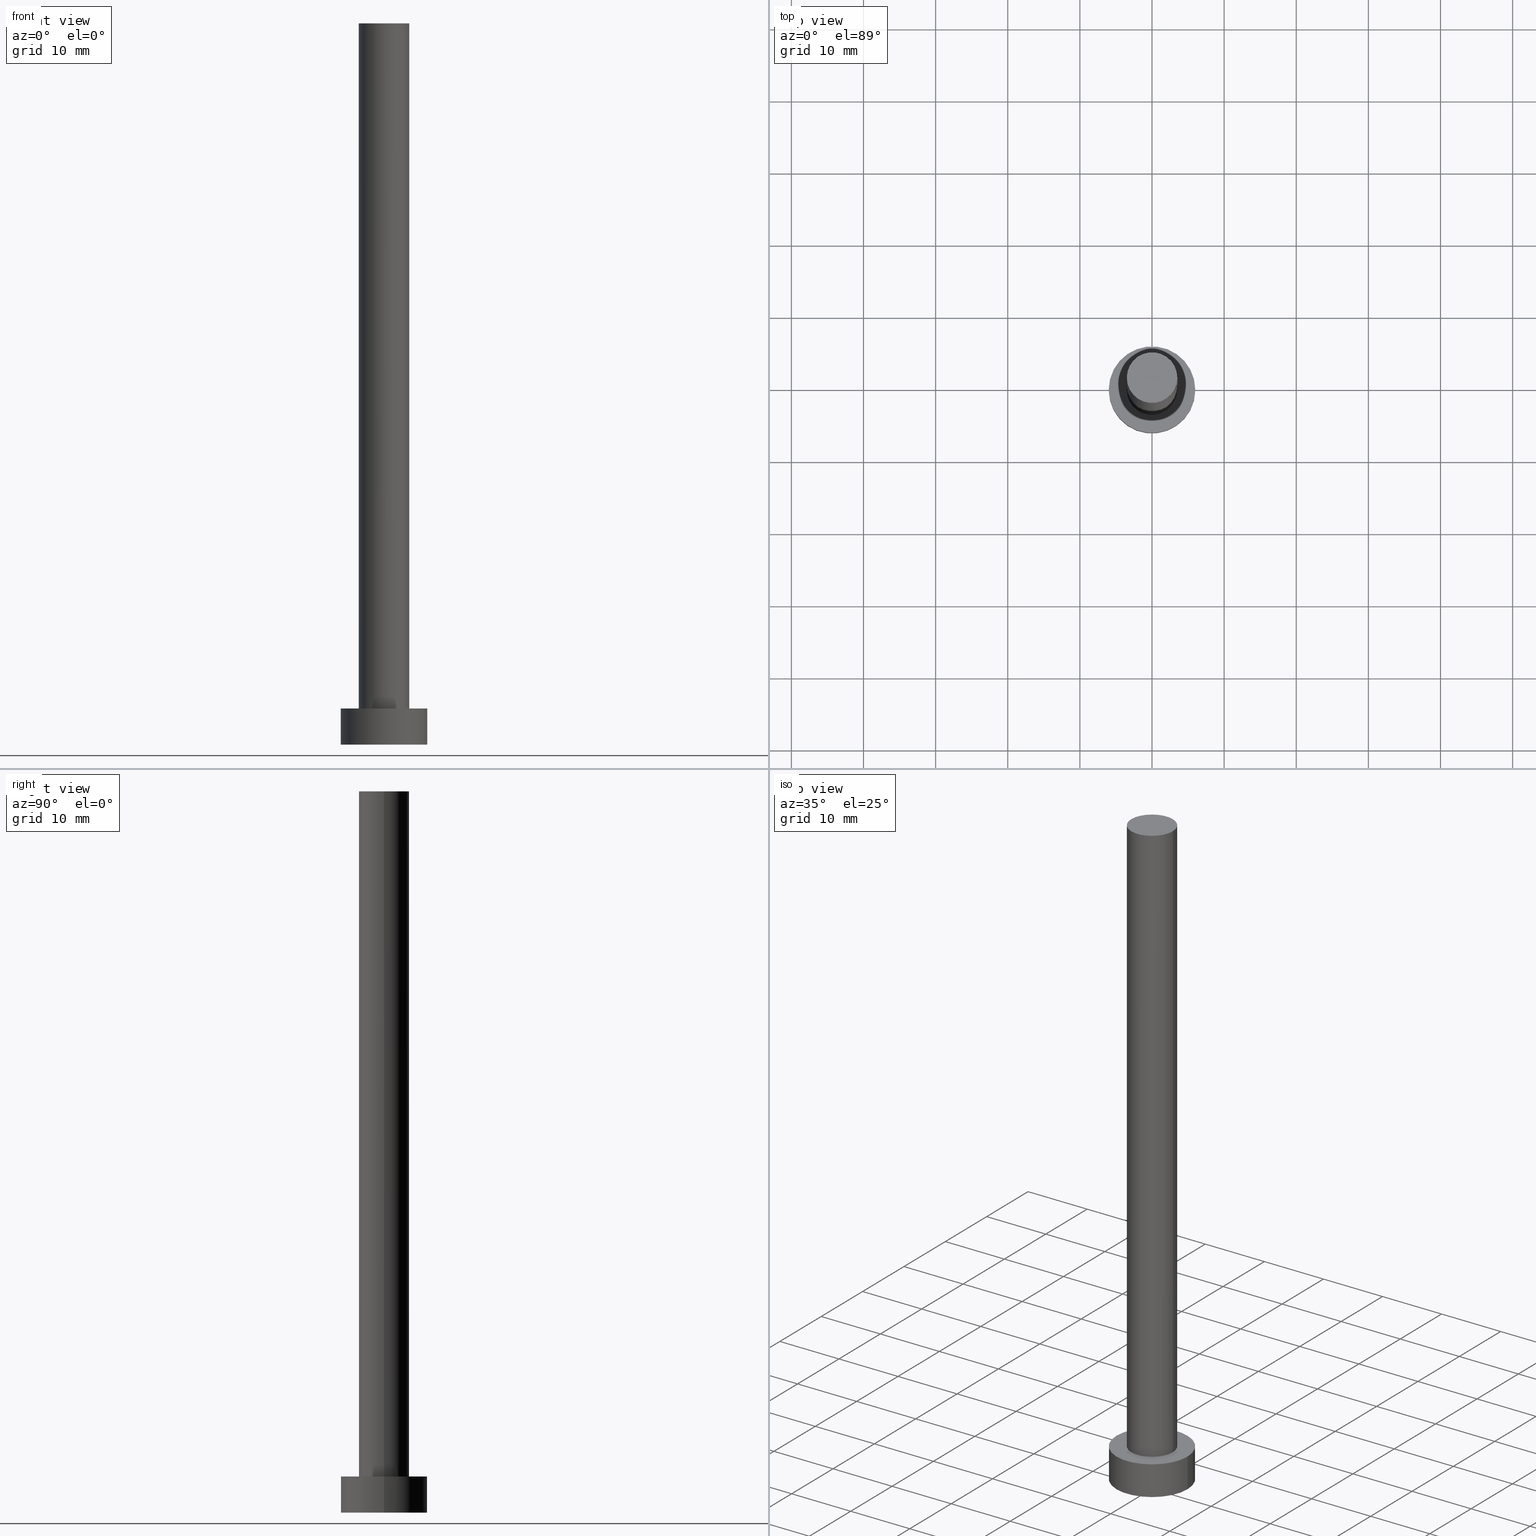
[diagram: canonical four-view strip — front | top / right | iso, engineering-drawing reading convention]
A machine part, canonical four-view strip (front | top / right | iso — engineering-drawing reading convention). The complete STEP part file that produces these views, byte-faithful:
ISO-10303-21;
HEADER;
FILE_DESCRIPTION (( 'STEP AP203' ),
    '1' );
FILE_NAME ('2190.STEP',
    '2023-02-13T13:36:54',
    ( '' ),
    ( '' ),
    'SwSTEP 2.0',
    'SolidWorks 2019',
    '' );
FILE_SCHEMA (( 'CONFIG_CONTROL_DESIGN' ));
ENDSEC;

DATA;
#1 = VERTEX_POINT ( 'NONE', #223 ) ;
#2 = DIRECTION ( 'NONE',  ( -0.000000000000000000, -0.000000000000000000, -1.000000000000000000 ) ) ;
#3 = UNCERTAINTY_MEASURE_WITH_UNIT (LENGTH_MEASURE( 1.000000000000000082E-05 ), #142, 'distance_accuracy_value', 'NONE');
#4 = ORIENTED_EDGE ( 'NONE', *, *, #13, .T. ) ;
#5 = PLANE ( 'NONE',  #212 ) ;
#6 = CIRCLE ( 'NONE', #183, 3.500000000000000000 ) ;
#7 = COORDINATED_UNIVERSAL_TIME_OFFSET ( 1, 0, .AHEAD. ) ;
#8 = ORIENTED_EDGE ( 'NONE', *, *, #162, .T. ) ;
#9 = PERSON ( 'NEUR�EN�', 'NEUR�EN�', 'NEUR�EN�', ('NEUR�EN�'), ('NEUR�EN�'), ('NEUR�EN�') ) ;
#10 = ORIENTED_EDGE ( 'NONE', *, *, #176, .T. ) ;
#11 = CARTESIAN_POINT ( 'NONE',  ( 0.000000000000000000, 0.000000000000000000, 100.0000000000000000 ) ) ;
#12 =( GEOMETRIC_REPRESENTATION_CONTEXT ( 3 ) GLOBAL_UNCERTAINTY_ASSIGNED_CONTEXT ( ( #3 ) ) GLOBAL_UNIT_ASSIGNED_CONTEXT ( ( #142, #127, #70 ) ) REPRESENTATION_CONTEXT ( 'NONE', 'WORKASPACE' ) );
#13 = EDGE_CURVE ( 'NONE', #100, #122, #71, .T. ) ;
#14 = CARTESIAN_POINT ( 'NONE',  ( 0.000000000000000000, 0.000000000000000000, 0.000000000000000000 ) ) ;
#15 = CARTESIAN_POINT ( 'NONE',  ( -6.000000000000000888, 0.000000000000000000, 5.000000000000000000 ) ) ;
#16 = DIRECTION ( 'NONE',  ( -0.000000000000000000, -0.000000000000000000, -1.000000000000000000 ) ) ;
#17 = CC_DESIGN_APPROVAL ( #214, ( #233 ) ) ;
#18 = ADVANCED_FACE ( 'NONE', ( #167 ), #56, .T. ) ;
#19 = APPROVAL_DATE_TIME ( #192, #208 ) ;
#20 = APPLICATION_CONTEXT ( 'configuration controlled 3d designs of mechanical parts and assemblies' ) ;
#21 = COORDINATED_UNIVERSAL_TIME_OFFSET ( 1, 0, .AHEAD. ) ;
#22 = CLOSED_SHELL ( 'NONE', ( #74, #155, #88, #246, #236, #18, #117 ) ) ;
#23 = DATE_AND_TIME ( #97, #95 ) ;
#24 = FACE_OUTER_BOUND ( 'NONE', #238, .T. ) ;
#25 = ORIENTED_EDGE ( 'NONE', *, *, #176, .F. ) ;
#26 = PLANE ( 'NONE',  #200 ) ;
#27 = AXIS2_PLACEMENT_3D ( 'NONE', #148, #226, #109 ) ;
#28 = VERTEX_POINT ( 'NONE', #92 ) ;
#29 = CALENDAR_DATE ( 2023, 13, 2 ) ;
#30 = CC_DESIGN_PERSON_AND_ORGANIZATION_ASSIGNMENT ( #157, #39, ( #121 ) ) ;
#31 = DIRECTION ( 'NONE',  ( 0.000000000000000000, 0.000000000000000000, 1.000000000000000000 ) ) ;
#32 = ADVANCED_BREP_SHAPE_REPRESENTATION ( '2190', ( #220, #125 ), #12 ) ;
#33 = DIRECTION ( 'NONE',  ( 0.000000000000000000, 0.000000000000000000, 1.000000000000000000 ) ) ;
#34 = DATE_TIME_ROLE ( 'creation_date' ) ;
#35 = CARTESIAN_POINT ( 'NONE',  ( 0.000000000000000000, 0.000000000000000000, 5.000000000000000000 ) ) ;
#36 = VECTOR ( 'NONE', #61, 1000.000000000000000 ) ;
#37 = DIRECTION ( 'NONE',  ( 0.000000000000000000, 0.000000000000000000, 1.000000000000000000 ) ) ;
#38 = PRODUCT_RELATED_PRODUCT_CATEGORY ( 'detail', '', ( #85 ) ) ;
#39 = PERSON_AND_ORGANIZATION_ROLE ( 'creator' ) ;
#40 = EDGE_CURVE ( 'NONE', #100, #69, #131, .T. ) ;
#41 = PERSON_AND_ORGANIZATION ( #9, #135 ) ;
#42 = DATE_AND_TIME ( #213, #111 ) ;
#43 = EDGE_LOOP ( 'NONE', ( #255, #4 ) ) ;
#44 = VECTOR ( 'NONE', #2, 1000.000000000000000 ) ;
#45 = EDGE_LOOP ( 'NONE', ( #124, #240, #66, #68 ) ) ;
#46 = CARTESIAN_POINT ( 'NONE',  ( 3.500000000000000000, 4.286263797015736595E-16, 5.000000000000000000 ) ) ;
#47 = EDGE_LOOP ( 'NONE', ( #180, #10, #160, #87 ) ) ;
#48 = APPROVAL_ROLE ( '' ) ;
#49 = PERSON_AND_ORGANIZATION ( #9, #135 ) ;
#50 = LOCAL_TIME ( 14, 36, 54.00000000000000000, #205 ) ;
#51 = CARTESIAN_POINT ( 'NONE',  ( 0.000000000000000000, 0.000000000000000000, 5.000000000000000000 ) ) ;
#52 = PERSON_AND_ORGANIZATION_ROLE ( 'creator' ) ;
#53 = DIRECTION ( 'NONE',  ( 1.000000000000000000, 0.000000000000000000, 0.000000000000000000 ) ) ;
#54 = AXIS2_PLACEMENT_3D ( 'NONE', #186, #31, #53 ) ;
#55 = DIRECTION ( 'NONE',  ( 1.000000000000000000, 0.000000000000000000, 0.000000000000000000 ) ) ;
#56 = CYLINDRICAL_SURFACE ( 'NONE', #107, 3.500000000000000000 ) ;
#57 = DIRECTION ( 'NONE',  ( -1.000000000000000000, 0.000000000000000000, 0.000000000000000000 ) ) ;
#58 = FACE_OUTER_BOUND ( 'NONE', #182, .T. ) ;
#59 = EDGE_CURVE ( 'NONE', #141, #1, #158, .T. ) ;
#60 = APPROVAL_PERSON_ORGANIZATION ( #64, #208, #82 ) ;
#61 = DIRECTION ( 'NONE',  ( -0.000000000000000000, -0.000000000000000000, -1.000000000000000000 ) ) ;
#62 = PERSON_AND_ORGANIZATION_ROLE ( 'design_supplier' ) ;
#63 = AXIS2_PLACEMENT_3D ( 'NONE', #247, #165, #168 ) ;
#64 = PERSON_AND_ORGANIZATION ( #9, #135 ) ;
#65 = ORIENTED_EDGE ( 'NONE', *, *, #181, .T. ) ;
#66 = ORIENTED_EDGE ( 'NONE', *, *, #196, .T. ) ;
#67 = EDGE_CURVE ( 'NONE', #225, #69, #193, .T. ) ;
#68 = ORIENTED_EDGE ( 'NONE', *, *, #181, .F. ) ;
#69 = VERTEX_POINT ( 'NONE', #150 ) ;
#70 =( NAMED_UNIT ( * ) SI_UNIT ( $, .STERADIAN. ) SOLID_ANGLE_UNIT ( ) );
#71 = CIRCLE ( 'NONE', #54, 6.000000000000000888 ) ;
#72 = DIRECTION ( 'NONE',  ( -0.000000000000000000, -0.000000000000000000, -1.000000000000000000 ) ) ;
#73 = CARTESIAN_POINT ( 'NONE',  ( -6.000000000000000888, 0.000000000000000000, 0.000000000000000000 ) ) ;
#74 = ADVANCED_FACE ( 'NONE', ( #96 ), #173, .T. ) ;
#75 = DIRECTION ( 'NONE',  ( 1.000000000000000000, 0.000000000000000000, 0.000000000000000000 ) ) ;
#76 = DIRECTION ( 'NONE',  ( -1.000000000000000000, 0.000000000000000000, 0.000000000000000000 ) ) ;
#77 = PERSON_AND_ORGANIZATION_ROLE ( 'classification_officer' ) ;
#78 = AXIS2_PLACEMENT_3D ( 'NONE', #250, #227, #76 ) ;
#79 = DIRECTION ( 'NONE',  ( 0.000000000000000000, 0.000000000000000000, 1.000000000000000000 ) ) ;
#80 = AXIS2_PLACEMENT_3D ( 'NONE', #207, #190, #172 ) ;
#81 = LOCAL_TIME ( 14, 36, 54.00000000000000000, #206 ) ;
#82 = APPROVAL_ROLE ( '' ) ;
#83 = ORIENTED_EDGE ( 'NONE', *, *, #197, .F. ) ;
#84 = DESIGN_CONTEXT ( 'detailed design', #20, 'design' ) ;
#85 = PRODUCT ( '2190', '2190', '', ( #129 ) ) ;
#86 = CC_DESIGN_DATE_AND_TIME_ASSIGNMENT ( #23, #194, ( #102 ) ) ;
#87 = ORIENTED_EDGE ( 'NONE', *, *, #108, .F. ) ;
#88 = ADVANCED_FACE ( 'NONE', ( #58 ), #229, .T. ) ;
#89 = ORIENTED_EDGE ( 'NONE', *, *, #196, .F. ) ;
#90 = DIRECTION ( 'NONE',  ( 1.000000000000000000, 0.000000000000000000, -0.000000000000000000 ) ) ;
#91 = DIRECTION ( 'NONE',  ( 0.000000000000000000, 0.000000000000000000, 1.000000000000000000 ) ) ;
#92 = CARTESIAN_POINT ( 'NONE',  ( -3.500000000000000000, 0.000000000000000000, 100.0000000000000000 ) ) ;
#93 = APPROVAL_ROLE ( '' ) ;
#94 = CARTESIAN_POINT ( 'NONE',  ( 0.000000000000000000, 0.000000000000000000, 0.000000000000000000 ) ) ;
#95 = LOCAL_TIME ( 14, 36, 54.00000000000000000, #21 ) ;
#96 = FACE_OUTER_BOUND ( 'NONE', #47, .T. ) ;
#97 = CALENDAR_DATE ( 2023, 13, 2 ) ;
#98 = EDGE_LOOP ( 'NONE', ( #25, #105, #195, #8 ) ) ;
#99 = EDGE_CURVE ( 'NONE', #28, #139, #6, .T. ) ;
#100 = VERTEX_POINT ( 'NONE', #154 ) ;
#101 = ORIENTED_EDGE ( 'NONE', *, *, #99, .T. ) ;
#102 = SECURITY_CLASSIFICATION ( '', '', #251 ) ;
#103 = APPROVAL_STATUS ( 'not_yet_approved' ) ;
#104 = DIRECTION ( 'NONE',  ( 0.000000000000000000, 0.000000000000000000, 1.000000000000000000 ) ) ;
#105 = ORIENTED_EDGE ( 'NONE', *, *, #99, .F. ) ;
#106 = CC_DESIGN_DATE_AND_TIME_ASSIGNMENT ( #123, #34, ( #233 ) ) ;
#107 = AXIS2_PLACEMENT_3D ( 'NONE', #187, #16, #202 ) ;
#108 = EDGE_CURVE ( 'NONE', #28, #1, #231, .T. ) ;
#109 = DIRECTION ( 'NONE',  ( 1.000000000000000000, 0.000000000000000000, 0.000000000000000000 ) ) ;
#110 = LINE ( 'NONE', #228, #36 ) ;
#111 = LOCAL_TIME ( 14, 36, 54.00000000000000000, #7 ) ;
#112 = CARTESIAN_POINT ( 'NONE',  ( 0.000000000000000000, 0.000000000000000000, 100.0000000000000000 ) ) ;
#113 = COORDINATED_UNIVERSAL_TIME_OFFSET ( 1, 0, .AHEAD. ) ;
#114 = DIRECTION ( 'NONE',  ( -0.000000000000000000, -0.000000000000000000, -1.000000000000000000 ) ) ;
#115 = SHAPE_DEFINITION_REPRESENTATION ( #222, #32 ) ;
#116 = PERSON_AND_ORGANIZATION ( #9, #135 ) ;
#117 = ADVANCED_FACE ( 'NONE', ( #178 ), #5, .T. ) ;
#118 = ORIENTED_EDGE ( 'NONE', *, *, #59, .F. ) ;
#119 = AXIS2_PLACEMENT_3D ( 'NONE', #51, #248, #171 ) ;
#120 = CARTESIAN_POINT ( 'NONE',  ( 3.500000000000000000, 4.286263797015736595E-16, 100.0000000000000000 ) ) ;
#121 = PRODUCT_DEFINITION_FORMATION_WITH_SPECIFIED_SOURCE ( 'LIBOVOLN�', '', #85, .NOT_KNOWN. ) ;
#122 = VERTEX_POINT ( 'NONE', #235 ) ;
#123 = DATE_AND_TIME ( #184, #50 ) ;
#124 = ORIENTED_EDGE ( 'NONE', *, *, #13, .F. ) ;
#125 = AXIS2_PLACEMENT_3D ( 'NONE', #14, #91, #241 ) ;
#126 = FACE_OUTER_BOUND ( 'NONE', #43, .T. ) ;
#127 =( NAMED_UNIT ( * ) PLANE_ANGLE_UNIT ( ) SI_UNIT ( $, .RADIAN. ) );
#128 = CC_DESIGN_PERSON_AND_ORGANIZATION_ASSIGNMENT ( #116, #77, ( #102 ) ) ;
#129 = MECHANICAL_CONTEXT ( 'NONE', #204, 'mechanical' ) ;
#130 = APPROVAL_STATUS ( 'not_yet_approved' ) ;
#131 = LINE ( 'NONE', #145, #151 ) ;
#132 = DIRECTION ( 'NONE',  ( -0.000000000000000000, -0.000000000000000000, -1.000000000000000000 ) ) ;
#133 = LINE ( 'NONE', #15, #185 ) ;
#134 = AXIS2_PLACEMENT_3D ( 'NONE', #11, #104, #203 ) ;
#135 = ORGANIZATION ( 'NEUR�EN�', 'NEUR�EN�', '' ) ;
#136 = DIRECTION ( 'NONE',  ( 1.000000000000000000, 0.000000000000000000, 0.000000000000000000 ) ) ;
#137 = CIRCLE ( 'NONE', #27, 6.000000000000000888 ) ;
#138 = DIRECTION ( 'NONE',  ( 0.000000000000000000, 0.000000000000000000, 1.000000000000000000 ) ) ;
#139 = VERTEX_POINT ( 'NONE', #120 ) ;
#140 = ORIENTED_EDGE ( 'NONE', *, *, #67, .F. ) ;
#141 = VERTEX_POINT ( 'NONE', #46 ) ;
#142 =( LENGTH_UNIT ( ) NAMED_UNIT ( * ) SI_UNIT ( .MILLI., .METRE. ) );
#143 = FACE_BOUND ( 'NONE', #237, .T. ) ;
#144 = CC_DESIGN_PERSON_AND_ORGANIZATION_ASSIGNMENT ( #41, #62, ( #121 ) ) ;
#145 = CARTESIAN_POINT ( 'NONE',  ( 6.000000000000000888, 7.347880794884120722E-16, 5.000000000000000000 ) ) ;
#146 = PERSON_AND_ORGANIZATION_ROLE ( 'design_owner' ) ;
#147 = ORIENTED_EDGE ( 'NONE', *, *, #67, .T. ) ;
#148 = CARTESIAN_POINT ( 'NONE',  ( 0.000000000000000000, 0.000000000000000000, 5.000000000000000000 ) ) ;
#149 = CYLINDRICAL_SURFACE ( 'NONE', #80, 6.000000000000000888 ) ;
#150 = CARTESIAN_POINT ( 'NONE',  ( 6.000000000000000888, 7.347880794884120722E-16, 0.000000000000000000 ) ) ;
#151 = VECTOR ( 'NONE', #72, 1000.000000000000000 ) ;
#152 = CC_DESIGN_APPROVAL ( #191, ( #121 ) ) ;
#153 = CC_DESIGN_PERSON_AND_ORGANIZATION_ASSIGNMENT ( #218, #146, ( #85 ) ) ;
#154 = CARTESIAN_POINT ( 'NONE',  ( 6.000000000000000888, 7.347880794884120722E-16, 5.000000000000000000 ) ) ;
#155 = ADVANCED_FACE ( 'NONE', ( #156 ), #149, .T. ) ;
#156 = FACE_OUTER_BOUND ( 'NONE', #45, .T. ) ;
#157 = PERSON_AND_ORGANIZATION ( #9, #135 ) ;
#158 = CIRCLE ( 'NONE', #119, 3.500000000000000000 ) ;
#159 = CC_DESIGN_APPROVAL ( #208, ( #102 ) ) ;
#160 = ORIENTED_EDGE ( 'NONE', *, *, #59, .T. ) ;
#161 = CARTESIAN_POINT ( 'NONE',  ( -3.500000000000000000, 0.000000000000000000, 100.0000000000000000 ) ) ;
#162 = EDGE_CURVE ( 'NONE', #1, #141, #219, .T. ) ;
#163 = DIRECTION ( 'NONE',  ( 1.000000000000000000, 0.000000000000000000, -0.000000000000000000 ) ) ;
#164 = CARTESIAN_POINT ( 'NONE',  ( 0.000000000000000000, 0.000000000000000000, 5.000000000000000000 ) ) ;
#165 = DIRECTION ( 'NONE',  ( 0.000000000000000000, 0.000000000000000000, 1.000000000000000000 ) ) ;
#166 = DATE_AND_TIME ( #29, #81 ) ;
#167 = FACE_OUTER_BOUND ( 'NONE', #98, .T. ) ;
#168 = DIRECTION ( 'NONE',  ( 1.000000000000000000, 0.000000000000000000, -0.000000000000000000 ) ) ;
#169 = DIRECTION ( 'NONE',  ( 0.000000000000000000, 0.000000000000000000, 1.000000000000000000 ) ) ;
#170 = AXIS2_PLACEMENT_3D ( 'NONE', #175, #79, #209 ) ;
#171 = DIRECTION ( 'NONE',  ( 1.000000000000000000, 0.000000000000000000, 0.000000000000000000 ) ) ;
#172 = DIRECTION ( 'NONE',  ( -1.000000000000000000, 0.000000000000000000, 0.000000000000000000 ) ) ;
#173 = CYLINDRICAL_SURFACE ( 'NONE', #78, 3.500000000000000000 ) ;
#174 = CC_DESIGN_PERSON_AND_ORGANIZATION_ASSIGNMENT ( #221, #52, ( #233 ) ) ;
#175 = CARTESIAN_POINT ( 'NONE',  ( 0.000000000000000000, 0.000000000000000000, 0.000000000000000000 ) ) ;
#176 = EDGE_CURVE ( 'NONE', #139, #141, #110, .T. ) ;
#177 = APPROVAL_DATE_TIME ( #42, #191 ) ;
#178 = FACE_OUTER_BOUND ( 'NONE', #198, .T. ) ;
#179 = CIRCLE ( 'NONE', #216, 6.000000000000000888 ) ;
#180 = ORIENTED_EDGE ( 'NONE', *, *, #242, .F. ) ;
#181 = EDGE_CURVE ( 'NONE', #122, #225, #133, .T. ) ;
#182 = EDGE_LOOP ( 'NONE', ( #217, #83, #65, #147 ) ) ;
#183 = AXIS2_PLACEMENT_3D ( 'NONE', #112, #37, #136 ) ;
#184 = CALENDAR_DATE ( 2023, 13, 2 ) ;
#185 = VECTOR ( 'NONE', #132, 1000.000000000000000 ) ;
#186 = CARTESIAN_POINT ( 'NONE',  ( 0.000000000000000000, 0.000000000000000000, 5.000000000000000000 ) ) ;
#187 = CARTESIAN_POINT ( 'NONE',  ( 0.000000000000000000, 0.000000000000000000, 100.0000000000000000 ) ) ;
#188 = AXIS2_PLACEMENT_3D ( 'NONE', #211, #114, #57 ) ;
#189 = APPROVAL_PERSON_ORGANIZATION ( #199, #191, #93 ) ;
#190 = DIRECTION ( 'NONE',  ( -0.000000000000000000, -0.000000000000000000, -1.000000000000000000 ) ) ;
#191 = APPROVAL ( #103, 'NEUR�EN�' ) ;
#192 = DATE_AND_TIME ( #230, #201 ) ;
#193 = CIRCLE ( 'NONE', #170, 6.000000000000000888 ) ;
#194 = DATE_TIME_ROLE ( 'classification_date' ) ;
#195 = ORIENTED_EDGE ( 'NONE', *, *, #108, .T. ) ;
#196 = EDGE_CURVE ( 'NONE', #69, #225, #179, .T. ) ;
#197 = EDGE_CURVE ( 'NONE', #122, #100, #137, .T. ) ;
#198 = EDGE_LOOP ( 'NONE', ( #101, #234 ) ) ;
#199 = PERSON_AND_ORGANIZATION ( #9, #135 ) ;
#200 = AXIS2_PLACEMENT_3D ( 'NONE', #164, #33, #90 ) ;
#201 = LOCAL_TIME ( 14, 36, 54.00000000000000000, #113 ) ;
#202 = DIRECTION ( 'NONE',  ( -1.000000000000000000, 0.000000000000000000, 0.000000000000000000 ) ) ;
#203 = DIRECTION ( 'NONE',  ( 1.000000000000000000, 0.000000000000000000, 0.000000000000000000 ) ) ;
#204 = APPLICATION_CONTEXT ( 'configuration controlled 3d designs of mechanical parts and assemblies' ) ;
#205 = COORDINATED_UNIVERSAL_TIME_OFFSET ( 1, 0, .AHEAD. ) ;
#206 = COORDINATED_UNIVERSAL_TIME_OFFSET ( 1, 0, .AHEAD. ) ;
#207 = CARTESIAN_POINT ( 'NONE',  ( 0.000000000000000000, 0.000000000000000000, 5.000000000000000000 ) ) ;
#208 = APPROVAL ( #210, 'NEUR�EN�' ) ;
#209 = DIRECTION ( 'NONE',  ( 1.000000000000000000, 0.000000000000000000, 0.000000000000000000 ) ) ;
#210 = APPROVAL_STATUS ( 'not_yet_approved' ) ;
#211 = CARTESIAN_POINT ( 'NONE',  ( 0.000000000000000000, 0.000000000000000000, 5.000000000000000000 ) ) ;
#212 = AXIS2_PLACEMENT_3D ( 'NONE', #252, #138, #163 ) ;
#213 = CALENDAR_DATE ( 2023, 13, 2 ) ;
#214 = APPROVAL ( #130, 'NEUR�EN�' ) ;
#215 = ORIENTED_EDGE ( 'NONE', *, *, #162, .F. ) ;
#216 = AXIS2_PLACEMENT_3D ( 'NONE', #94, #169, #55 ) ;
#217 = ORIENTED_EDGE ( 'NONE', *, *, #40, .F. ) ;
#218 = PERSON_AND_ORGANIZATION ( #9, #135 ) ;
#219 = CIRCLE ( 'NONE', #253, 3.500000000000000000 ) ;
#220 = MANIFOLD_SOLID_BREP ( 'P�idat vysunut�m3', #22 ) ;
#221 = PERSON_AND_ORGANIZATION ( #9, #135 ) ;
#222 = PRODUCT_DEFINITION_SHAPE ( 'NONE', 'NONE',  #233 ) ;
#223 = CARTESIAN_POINT ( 'NONE',  ( -3.500000000000000000, 0.000000000000000000, 5.000000000000000000 ) ) ;
#224 = APPLICATION_PROTOCOL_DEFINITION ( 'international standard', 'config_control_design', 1994, #20 ) ;
#225 = VERTEX_POINT ( 'NONE', #73 ) ;
#226 = DIRECTION ( 'NONE',  ( 0.000000000000000000, 0.000000000000000000, 1.000000000000000000 ) ) ;
#227 = DIRECTION ( 'NONE',  ( -0.000000000000000000, -0.000000000000000000, -1.000000000000000000 ) ) ;
#228 = CARTESIAN_POINT ( 'NONE',  ( 3.500000000000000000, 4.286263797015736595E-16, 100.0000000000000000 ) ) ;
#229 = CYLINDRICAL_SURFACE ( 'NONE', #188, 6.000000000000000888 ) ;
#230 = CALENDAR_DATE ( 2023, 13, 2 ) ;
#231 = LINE ( 'NONE', #161, #44 ) ;
#232 = PLANE ( 'NONE',  #63 ) ;
#233 = PRODUCT_DEFINITION ( 'NEZN�M�', '', #121, #84 ) ;
#234 = ORIENTED_EDGE ( 'NONE', *, *, #242, .T. ) ;
#235 = CARTESIAN_POINT ( 'NONE',  ( -6.000000000000000888, 0.000000000000000000, 5.000000000000000000 ) ) ;
#236 = ADVANCED_FACE ( 'NONE', ( #24 ), #232, .F. ) ;
#237 = EDGE_LOOP ( 'NONE', ( #215, #118 ) ) ;
#238 = EDGE_LOOP ( 'NONE', ( #140, #89 ) ) ;
#239 = APPLICATION_PROTOCOL_DEFINITION ( 'international standard', 'config_control_design', 1994, #204 ) ;
#240 = ORIENTED_EDGE ( 'NONE', *, *, #40, .T. ) ;
#241 = DIRECTION ( 'NONE',  ( 1.000000000000000000, 0.000000000000000000, 0.000000000000000000 ) ) ;
#242 = EDGE_CURVE ( 'NONE', #139, #28, #243, .T. ) ;
#243 = CIRCLE ( 'NONE', #134, 3.500000000000000000 ) ;
#244 = CC_DESIGN_SECURITY_CLASSIFICATION ( #102, ( #121 ) ) ;
#245 = APPROVAL_DATE_TIME ( #166, #214 ) ;
#246 = ADVANCED_FACE ( 'NONE', ( #143, #126 ), #26, .T. ) ;
#247 = CARTESIAN_POINT ( 'NONE',  ( 0.000000000000000000, 0.000000000000000000, 0.000000000000000000 ) ) ;
#248 = DIRECTION ( 'NONE',  ( 0.000000000000000000, 0.000000000000000000, 1.000000000000000000 ) ) ;
#249 = DIRECTION ( 'NONE',  ( 0.000000000000000000, 0.000000000000000000, 1.000000000000000000 ) ) ;
#250 = CARTESIAN_POINT ( 'NONE',  ( 0.000000000000000000, 0.000000000000000000, 100.0000000000000000 ) ) ;
#251 = SECURITY_CLASSIFICATION_LEVEL ( 'unclassified' ) ;
#252 = CARTESIAN_POINT ( 'NONE',  ( 0.000000000000000000, 0.000000000000000000, 100.0000000000000000 ) ) ;
#253 = AXIS2_PLACEMENT_3D ( 'NONE', #35, #249, #75 ) ;
#254 = APPROVAL_PERSON_ORGANIZATION ( #49, #214, #48 ) ;
#255 = ORIENTED_EDGE ( 'NONE', *, *, #197, .T. ) ;
ENDSEC;
END-ISO-10303-21;
